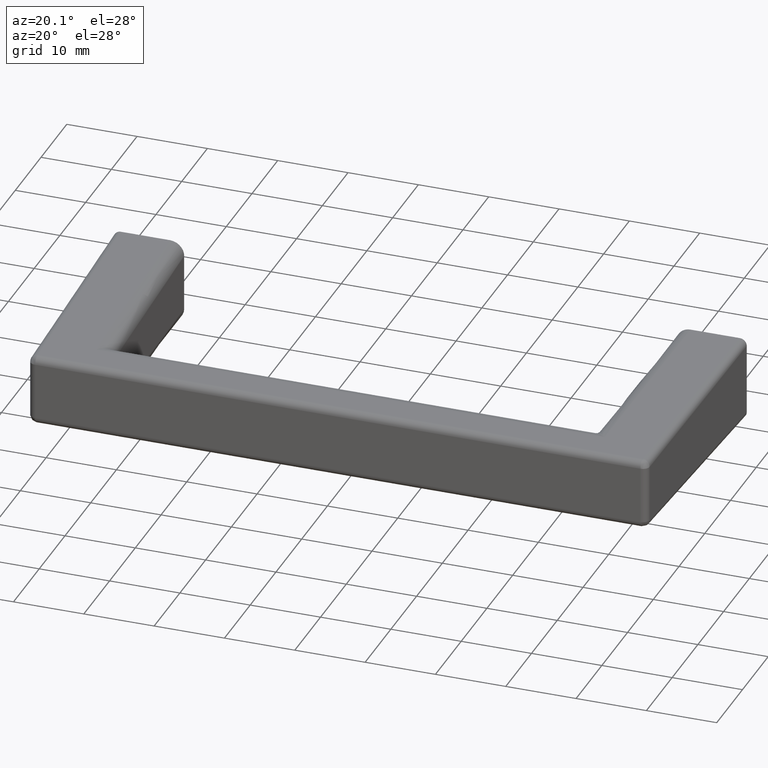
[diagram: clean part render]
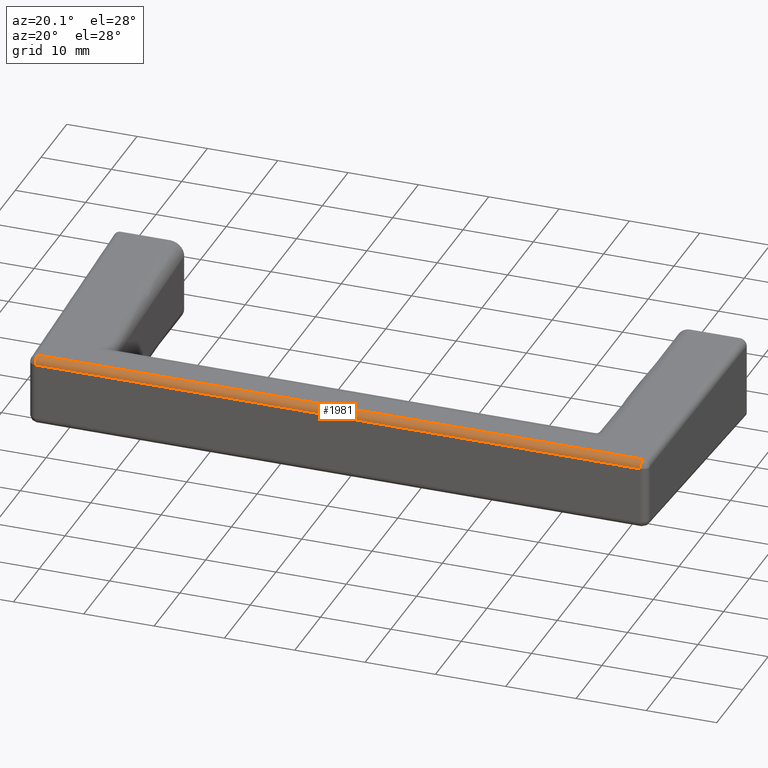
[diagram: same view with one face highlighted and labeled with its STEP entity id]
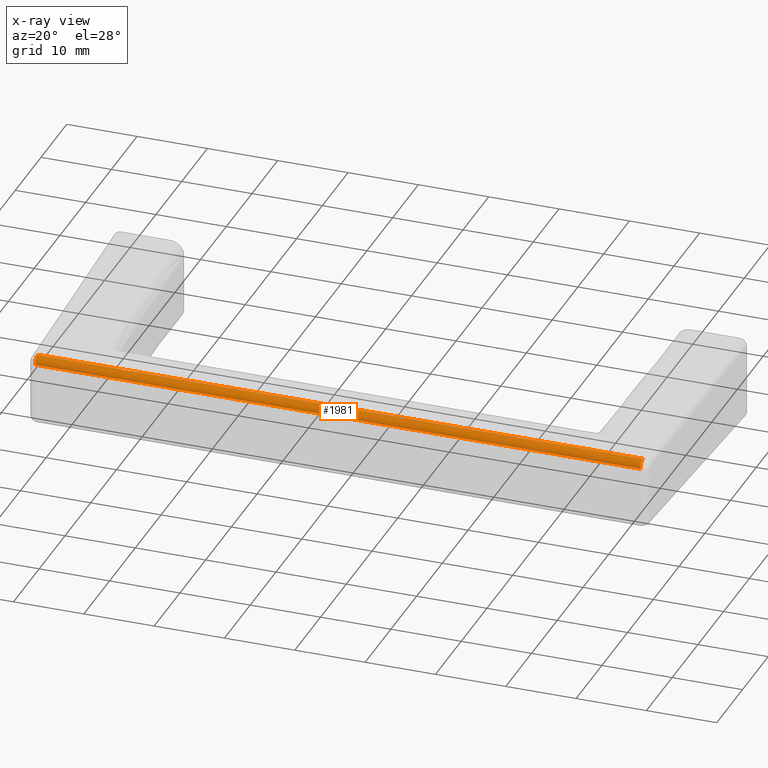
[diagram: x-ray of the same camera — body ghosted, the highlighted face saturated]
A machine part, auxiliary view. The second image highlights one B-rep face of the part: STEP entity #1981.
The next image is the same camera in x-ray: the body ghosted, the highlighted face saturated — about 0% of this face is hidden behind the body in this view.
In plain terms, the highlighted face is a freeform B-spline surface patch.
Its self-contained STEP definition (entity closure, byte-faithful):
#940=CARTESIAN_POINT('',(43.027485203951201,-36.0,4.027392049701705));
#941=VERTEX_POINT('',#940);
#942=CARTESIAN_POINT('',(-43.027392049701703,-36.0,4.027392049701705));
#943=VERTEX_POINT('',#942);
#944=CARTESIAN_POINT('',(43.027485203951201,-36.0,4.027392049701705));
#945=CARTESIAN_POINT('',(-43.027392049701703,-36.0,4.027392049701705));
#946=QUASI_UNIFORM_CURVE('',1,(#944,#945),.UNSPECIFIED.,.F.,.U.);
#947=EDGE_CURVE('',#941,#943,#946,.T.);
#1831=CARTESIAN_POINT('',(-43.027392049701753,-35.027767067240447,5.027006470354420));
#1832=VERTEX_POINT('',#1831);
#1900=CARTESIAN_POINT('',(-43.027392049701703,-36.0,4.027392049701705));
#1901=CARTESIAN_POINT('',(-43.027392049701703,-36.000146209036750,4.164031627777034));
#1902=CARTESIAN_POINT('',(-43.027392049701611,-35.943149534702293,4.437177409874432));
#1903=CARTESIAN_POINT('',(-43.027392049702208,-35.734951479572352,4.732127514133233));
#1904=CARTESIAN_POINT('',(-43.027392049700801,-35.427530113736637,4.956438548948387));
#1905=CARTESIAN_POINT('',(-43.027392049702350,-35.188521358019592,5.022870321567178));
#1906=CARTESIAN_POINT('',(-43.027392049701753,-35.027767067240447,5.027006470354420));
#1907=B_SPLINE_CURVE_WITH_KNOTS('',3,(#1900,#1901,#1902,#1903,#1904,#1905,#1906),.UNSPECIFIED.,.F.,.U.,(4,1,1,1,4),(0.000000226404068,0.409877513111985,0.819730014557125,1.060851030521697,1.543063054195505),.UNSPECIFIED.);
#1908=EDGE_CURVE('',#943,#1832,#1907,.T.);
#1946=CARTESIAN_POINT('',(-45.178763981043062,-35.999961923064170,4.018665514203332));
#1947=CARTESIAN_POINT('',(45.232641433576063,-35.999961923064170,4.018665514203332));
#1948=CARTESIAN_POINT('',(-45.178763981043055,-36.008998515107116,5.054156398172589));
#1949=CARTESIAN_POINT('',(45.232641433576063,-36.008998515107116,5.054156398172589));
#1950=CARTESIAN_POINT('',(-45.178763981043062,-34.973823051692129,5.027049374677258));
#1951=CARTESIAN_POINT('',(45.232641433576063,-34.973823051692129,5.027049374677258));
#1959=(BOUNDED_SURFACE()B_SPLINE_SURFACE(1,2,((#1946,#1948,#1950),(#1947,#1949,#1951)),.UNSPECIFIED.,.F.,.F.,.U.)B_SPLINE_SURFACE_WITH_KNOTS((2,2),(3,3),(0.0,90.411405414619125),(0.0,1.0),.UNSPECIFIED.)GEOMETRIC_REPRESENTATION_ITEM()RATIONAL_B_SPLINE_SURFACE(((1.0,0.694658370458997,1.0),(1.0,0.694658370458997,1.0)))REPRESENTATION_ITEM('')SURFACE());
#1960=CARTESIAN_POINT('',(43.027485203951201,-35.027767067240447,5.027006470354420));
#1961=VERTEX_POINT('',#1960);
#1962=CARTESIAN_POINT('',(43.027485203951201,-36.0,4.027392049701705));
#1963=CARTESIAN_POINT('',(43.027485203951258,-36.000146073559769,4.164031423059237));
#1964=CARTESIAN_POINT('',(43.027485203951109,-35.943149565205573,4.437177498218738));
#1965=CARTESIAN_POINT('',(43.027485203951699,-35.734951478516408,4.732127497396480));
#1966=CARTESIAN_POINT('',(43.027485203950313,-35.427530152838933,4.956438566154063));
#1967=CARTESIAN_POINT('',(43.027485203951812,-35.188521330855302,5.022870311440139));
#1968=CARTESIAN_POINT('',(43.027485203951201,-35.027767067240447,5.027006470354420));
#1969=B_SPLINE_CURVE_WITH_KNOTS('',3,(#1962,#1963,#1964,#1965,#1966,#1967,#1968),.UNSPECIFIED.,.F.,.U.,(4,1,1,1,4),(0.000000226404068,0.409877513111985,0.819730014557125,1.060851030521697,1.543063054195505),.UNSPECIFIED.);
#1970=EDGE_CURVE('',#941,#1961,#1969,.T.);
#1971=ORIENTED_EDGE('',*,*,#1970,.T.);
#1972=CARTESIAN_POINT('',(-43.027392049701753,-35.027767067240447,5.027006470354420));
#1973=CARTESIAN_POINT('',(43.027485203951201,-35.027767067240447,5.027006470354420));
#1974=QUASI_UNIFORM_CURVE('',1,(#1972,#1973),.UNSPECIFIED.,.F.,.U.);
#1975=EDGE_CURVE('',#1832,#1961,#1974,.T.);
#1976=ORIENTED_EDGE('',*,*,#1975,.F.);
#1977=ORIENTED_EDGE('',*,*,#1908,.F.);
#1978=ORIENTED_EDGE('',*,*,#947,.F.);
#1979=EDGE_LOOP('',(#1971,#1976,#1977,#1978));
#1980=FACE_OUTER_BOUND('',#1979,.T.);
#1981=ADVANCED_FACE('',(#1980),#1959,.T.);